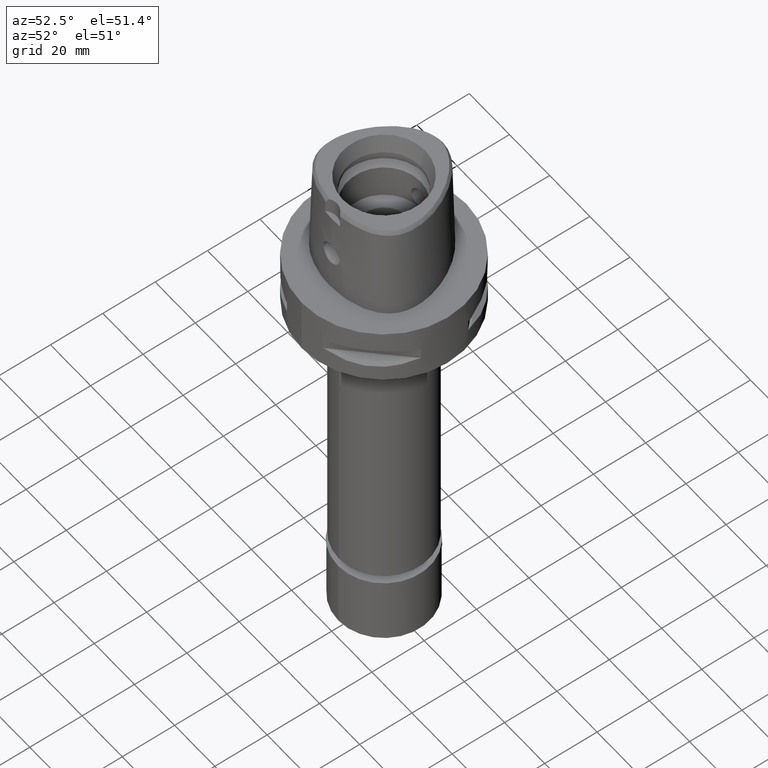
[diagram: clean part render]
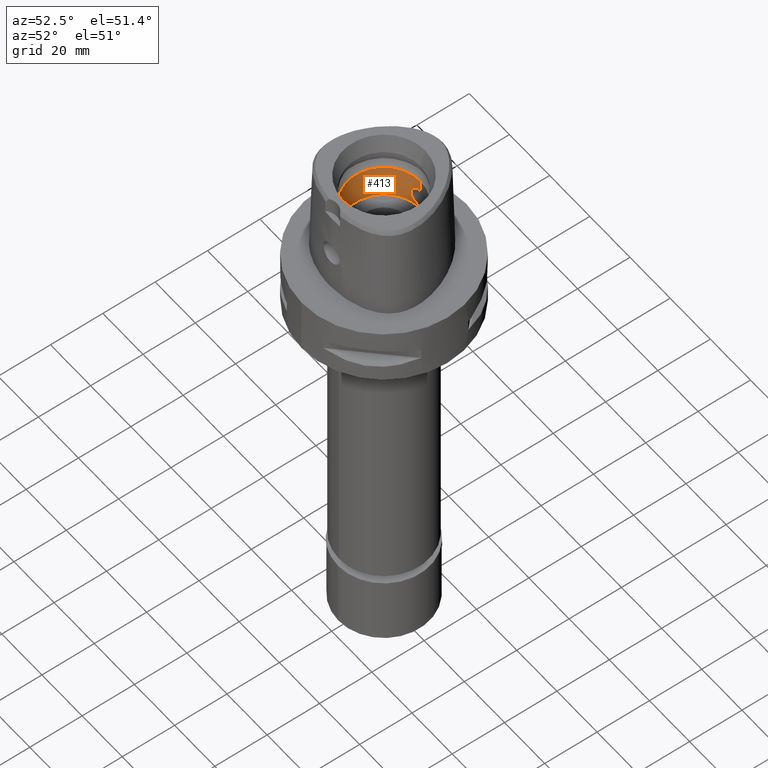
[diagram: same view with one face highlighted and labeled with its STEP entity id]
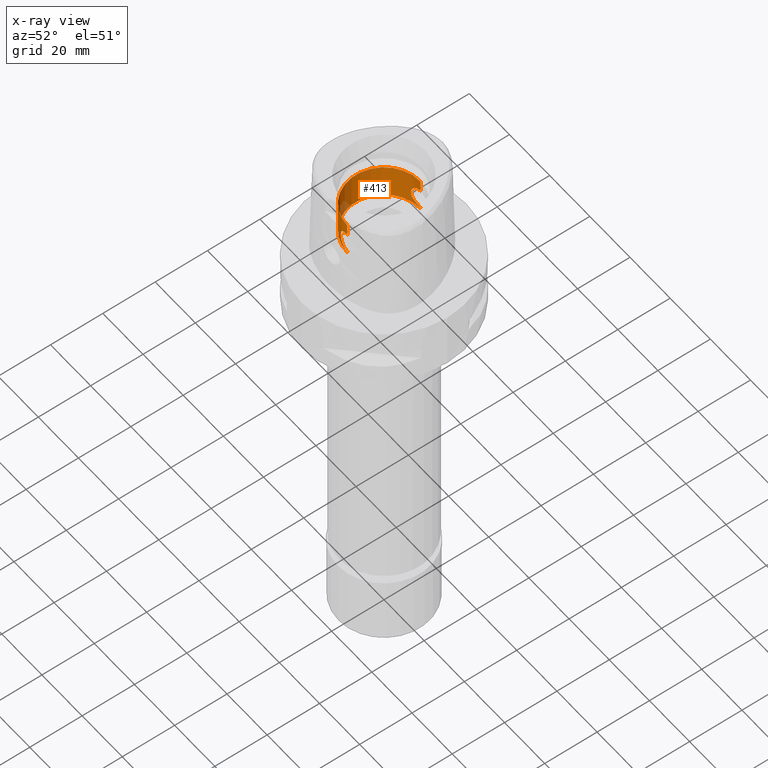
[diagram: x-ray of the same camera — body ghosted, the highlighted face saturated]
A machine part, auxiliary view. The second image highlights one B-rep face of the part: STEP entity #413.
The next image is the same camera in x-ray: the body ghosted, the highlighted face saturated — about 4% of this face is hidden behind the body in this view.
In plain terms, the highlighted cylindrical surface (partial cylindrical patch) has radius 14 mm, axis along (0, 0, -1).
Its self-contained STEP definition (entity closure, byte-faithful):
#26 = CARTESIAN_POINT ( 'NONE',  ( -2.619678395302284635, 13.75271173100907696, 18.58959817601682829 ) ) ;
#52 = CARTESIAN_POINT ( 'NONE',  ( -3.518015050534351484, 13.55099577410093303, 17.51099131720530977 ) ) ;
#72 = CARTESIAN_POINT ( 'NONE',  ( -3.354717022404688720, -13.59210053067289614, 13.23098671883971633 ) ) ;
#75 = EDGE_CURVE ( 'NONE', #4487, #94, #3357, .T. ) ;
#78 = CARTESIAN_POINT ( 'NONE',  ( -3.217024280570685679, 13.62560801646296404, 17.96124663664447851 ) ) ;
#94 = VERTEX_POINT ( 'NONE', #3772 ) ;
#95 = CARTESIAN_POINT ( 'NONE',  ( -3.267849621307421959, -13.61368086708066549, 17.89611250666432696 ) ) ;
#102 = CARTESIAN_POINT ( 'NONE',  ( -3.359018354059780442, 13.59103588697290732, 17.76263171130647933 ) ) ;
#108 = CARTESIAN_POINT ( 'NONE',  ( -0.2481233146395490086, -13.99999999999999645, 11.44999999999999751 ) ) ;
#120 = CARTESIAN_POINT ( 'NONE',  ( -2.903821122526102361, -13.69557803345095870, 18.32351594660953609 ) ) ;
#125 = CARTESIAN_POINT ( 'NONE',  ( -3.792127496899027950, 13.47677589322049840, 14.07720388872361106 ) ) ;
#134 = CARTESIAN_POINT ( 'NONE',  ( -2.206593057644462785, -13.82500440804239084, 12.10388654105299722 ) ) ;
#149 = CARTESIAN_POINT ( 'NONE',  ( -3.864690270392964422, -13.45628098105979120, 16.71293879889267586 ) ) ;
#154 = CARTESIAN_POINT ( 'NONE',  ( -3.020670326908654779, 13.67035789234612864, 12.80192636236084702 ) ) ;
#171 = CARTESIAN_POINT ( 'NONE',  ( -4.027164429084249875, -13.40875122215939896, 16.00316316717791310 ) ) ;
#179 = CARTESIAN_POINT ( 'NONE',  ( -1.643117181819549355, 13.90317184026671704, 11.79805591756453786 ) ) ;
#184 = CARTESIAN_POINT ( 'NONE',  ( -1.935022612052784252, -13.86568942618871247, 11.94154868822637994 ) ) ;
#223 = CARTESIAN_POINT ( 'NONE',  ( -1.571467769242112844, -13.91140618995229516, 19.23272429961840047 ) ) ;
#251 = CARTESIAN_POINT ( 'NONE',  ( -2.255323879987685132, 13.81714880390456202, 12.13606855324395362 ) ) ;
#257 = CARTESIAN_POINT ( 'NONE',  ( 0.0000000000000000000, -14.00000000000000000, 11.00000000000000000 ) ) ;
#277 = CARTESIAN_POINT ( 'NONE',  ( -1.017653704132178927, 13.96322960907036936, 19.42235841239154936 ) ) ;
#288 = CARTESIAN_POINT ( 'NONE',  ( -2.255323160521186754, -13.81714883021829721, 18.86393192913396888 ) ) ;
#294 = VERTEX_POINT ( 'NONE', #558 ) ;
#397 = CARTESIAN_POINT ( 'NONE',  ( -3.702141139944067127, 13.50181959567414935, 13.85346196767712357 ) ) ;
#413 = ADVANCED_FACE ( 'NONE', ( #479 ), #2129, .F. ) ;
#423 = CARTESIAN_POINT ( 'NONE',  ( -2.230276539602563890, 13.82119864383903618, 18.88058804987969452 ) ) ;
#443 = CARTESIAN_POINT ( 'NONE',  ( -3.444120655671330411, -13.56976859149049908, 17.63136982694306454 ) ) ;
#444 = EDGE_CURVE ( 'NONE', #570, #4487, #2775, .T. ) ;
#450 = CARTESIAN_POINT ( 'NONE',  ( -3.750537618543501761, 13.48837475229637661, 13.97159430630645538 ) ) ;
#466 = CARTESIAN_POINT ( 'NONE',  ( -3.750524322622795559, -13.48837880578515502, 17.02843831975151545 ) ) ;
#473 = CARTESIAN_POINT ( 'NONE',  ( -3.864704953908236540, 13.45627652363386595, 14.28710780147966730 ) ) ;
#479 = FACE_OUTER_BOUND ( 'NONE', #2254, .T. ) ;
#491 = CARTESIAN_POINT ( 'NONE',  ( -3.446478130657629091, -13.56938248439971062, 13.36789723771942384 ) ) ;
#500 = CARTESIAN_POINT ( 'NONE',  ( -3.344200888517083303, 13.59470120129321735, 17.78451853046754749 ) ) ;
#505 = CARTESIAN_POINT ( 'NONE',  ( -0.8886493225596974188, -13.97198540294750657, 11.54653074165008775 ) ) ;
#517 = CARTESIAN_POINT ( 'NONE',  ( -3.731977845628441148, -13.49354352116922051, 13.92681855777179756 ) ) ;
#520 = ORIENTED_EDGE ( 'NONE', *, *, #2010, .T. ) ;
#524 = CARTESIAN_POINT ( 'NONE',  ( -1.686547492133162018, 13.89794919732646150, 11.81773303793203844 ) ) ;
#529 = CARTESIAN_POINT ( 'NONE',  ( -2.705648785630775155, -13.73602080770822731, 12.48612827581302120 ) ) ;
#543 = CARTESIAN_POINT ( 'NONE',  ( -3.702127141739468996, -13.50182375070569840, 17.14656944740355726 ) ) ;
#558 = CARTESIAN_POINT ( 'NONE',  ( 0.0000000000000000000, 14.00000000000000000, 11.00000000000000000 ) ) ;
#570 = VERTEX_POINT ( 'NONE', #4051 ) ;
#578 = CARTESIAN_POINT ( 'NONE',  ( -2.261346978744742220, 13.81616282470698032, 12.14011627832047679 ) ) ;
#607 = CARTESIAN_POINT ( 'NONE',  ( -2.474902843185359025, 13.77946291803655221, 12.29346422774143122 ) ) ;
#629 = ORIENTED_EDGE ( 'NONE', *, *, #75, .F. ) ;
#725 = DIRECTION ( 'NONE',  ( 0.0000000000000000000, 0.0000000000000000000, -1.000000000000000000 ) ) ;
#748 = DIRECTION ( 'NONE',  ( 0.0000000000000000000, -1.000000000000000000, 0.0000000000000000000 ) ) ;
#779 = CARTESIAN_POINT ( 'NONE',  ( -1.419282906569975022, 13.92782716423186606, 19.29343954041274500 ) ) ;
#802 = CARTESIAN_POINT ( 'NONE',  ( -3.321818675729910630, 13.60022453487032124, 17.81710118636976148 ) ) ;
#824 = CARTESIAN_POINT ( 'NONE',  ( -3.927456412067801939, 13.43840604247997383, 16.52349544793532843 ) ) ;
#842 = CARTESIAN_POINT ( 'NONE',  ( -3.361917771721290471, -13.59031831955136838, 13.24167861847934269 ) ) ;
#850 = CARTESIAN_POINT ( 'NONE',  ( -3.300113392641764065, 13.60554300990459353, 17.84786463857772176 ) ) ;
#872 = CARTESIAN_POINT ( 'NONE',  ( -3.792113608136728597, -13.47678016659015299, 16.92283307354020394 ) ) ;
#882 = CARTESIAN_POINT ( 'NONE',  ( -3.922086968074596225, 13.43982905497392899, 14.48120596839360275 ) ) ;
#897 = CARTESIAN_POINT ( 'NONE',  ( -3.760687355223339079, -13.48555138752758786, 17.00326497578441121 ) ) ;
#912 = CARTESIAN_POINT ( 'NONE',  ( -2.564506475585013767, -13.76306145072914866, 12.36467152189489305 ) ) ;
#923 = CARTESIAN_POINT ( 'NONE',  ( -3.300146097211795304, -13.60553518918984572, 13.15218130219887804 ) ) ;
#951 = CARTESIAN_POINT ( 'NONE',  ( -3.701480848385385602, -13.50195484765276355, 13.85584820689059526 ) ) ;
#964 = CARTESIAN_POINT ( 'NONE',  ( -2.824270181471372876, -13.71216970554436898, 12.59716805753049940 ) ) ;
#986 = DIRECTION ( 'NONE',  ( 0.0000000000000000000, 0.0000000000000000000, 1.000000000000000000 ) ) ;
#1009 = CARTESIAN_POINT ( 'NONE',  ( -0.4996125170457356157, 14.00000000000000533, 11.45000000000000107 ) ) ;
#1036 = EDGE_CURVE ( 'NONE', #294, #3074, #3376, .T. ) ;
#1049 = CARTESIAN_POINT ( 'NONE',  ( -1.559052860814120756, -13.91280454319135096, 19.23793469162767167 ) ) ;
#1069 = CARTESIAN_POINT ( 'NONE',  ( -1.686550735087898989, -13.89794894225484789, 19.18226547206638699 ) ) ;
#1106 = AXIS2_PLACEMENT_3D ( 'NONE', #1289, #725, #748 ) ;
#1107 = DIRECTION ( 'NONE',  ( 0.0000000000000000000, 0.0000000000000000000, 1.000000000000000000 ) ) ;
#1126 = ORIENTED_EDGE ( 'NONE', *, *, #2999, .F. ) ;
#1141 = ORIENTED_EDGE ( 'NONE', *, *, #444, .F. ) ;
#1163 = DIRECTION ( 'NONE',  ( 0.0000000000000000000, 0.0000000000000000000, 1.000000000000000000 ) ) ;
#1182 = CARTESIAN_POINT ( 'NONE',  ( -1.499110254762268779, 13.91942797523232933, 19.26237458011850023 ) ) ;
#1190 = DIRECTION ( 'NONE',  ( 0.0000000000000000000, 1.000000000000000000, 0.0000000000000000000 ) ) ;
#1208 = CARTESIAN_POINT ( 'NONE',  ( -3.737855532218592458, 13.49191660592741115, 17.05916468326444146 ) ) ;
#1226 = CARTESIAN_POINT ( 'NONE',  ( -3.953308345544217506, -13.43069386238143714, 16.38940134527216586 ) ) ;
#1231 = CARTESIAN_POINT ( 'NONE',  ( -1.935031803101593395, 13.86568816071832977, 19.05844626929745900 ) ) ;
#1249 = CARTESIAN_POINT ( 'NONE',  ( -3.681921415773525386, -13.50729957353742527, 13.81270123671149541 ) ) ;
#1257 = CARTESIAN_POINT ( 'NONE',  ( -2.128124874489936591, 13.83734818431477365, 18.94612210419235865 ) ) ;
#1263 = CARTESIAN_POINT ( 'NONE',  ( -1.499083550138273768, -13.91943067546913504, 11.73761478100302824 ) ) ;
#1279 = CARTESIAN_POINT ( 'NONE',  ( -3.253150361982007688, -13.61695202757328893, 13.08703909582365377 ) ) ;
#1285 = CARTESIAN_POINT ( 'NONE',  ( -3.754238695446730389, 13.48734574627154892, 13.98070187456401037 ) ) ;
#1289 = CARTESIAN_POINT ( 'NONE',  ( 0.0000000000000000000, 0.0000000000000000000, 11.00000000000000000 ) ) ;
#1303 = CARTESIAN_POINT ( 'NONE',  ( -3.612128121266030334, -13.52615160472818090, 13.66709664464266183 ) ) ;
#1312 = CARTESIAN_POINT ( 'NONE',  ( -3.377728049959921819, 13.58640530706137639, 13.26539486208032059 ) ) ;
#1329 = CARTESIAN_POINT ( 'NONE',  ( -2.993286815517739008, -13.67636053672327456, 18.22846751437067070 ) ) ;
#1345 = CARTESIAN_POINT ( 'NONE',  ( -2.128121687467982692, -13.83734872393117499, 12.05387591117801449 ) ) ;
#1366 = CARTESIAN_POINT ( 'NONE',  ( 0.0000000000000000000, -14.00000000000000000, 11.00000000000000000 ) ) ;
#1385 = CARTESIAN_POINT ( 'NONE',  ( -3.386228288498708938, 13.58428977150538230, 13.27829381858934177 ) ) ;
#1410 = CARTESIAN_POINT ( 'NONE',  ( -2.130879132537669474, 13.83743606475561627, 12.05283736817495033 ) ) ;
#1432 = VERTEX_POINT ( 'NONE', #1854 ) ;
#1533 = CARTESIAN_POINT ( 'NONE',  ( -0.8886659555118071596, 13.97198446405361238, 19.45346560059110885 ) ) ;
#1562 = CARTESIAN_POINT ( 'NONE',  ( -2.749410275215096178, 13.72738853749745935, 18.47424654107999231 ) ) ;
#1587 = CARTESIAN_POINT ( 'NONE',  ( -2.824250019478133034, 13.71217387128831966, 18.40285154784292843 ) ) ;
#1603 = CARTESIAN_POINT ( 'NONE',  ( -3.217051431888468649, -13.62560170214188027, 13.03878876121763319 ) ) ;
#1610 = CARTESIAN_POINT ( 'NONE',  ( -3.701442083267798999, 13.50196586781230934, 17.14423904783543051 ) ) ;
#1628 = CARTESIAN_POINT ( 'NONE',  ( -3.098505828303367515, -13.65306849080780971, 18.10920752393312938 ) ) ;
#1634 = CARTESIAN_POINT ( 'NONE',  ( -1.467197647124714344, 13.92282048153832719, 19.27493378767454146 ) ) ;
#1640 = CARTESIAN_POINT ( 'NONE',  ( -1.419257430341616555, -13.92782958298390206, 11.70655093775061317 ) ) ;
#1652 = CIRCLE ( 'NONE', #2299, 14.00000000000000000 ) ;
#1654 = CARTESIAN_POINT ( 'NONE',  ( -2.322873642598336286, -13.80594824667466547, 18.81781813266492520 ) ) ;
#1660 = CARTESIAN_POINT ( 'NONE',  ( -2.837978858513411140, 13.70934507260495572, 18.38945062058951407 ) ) ;
#1665 = CARTESIAN_POINT ( 'NONE',  ( -2.217814638591027343, -13.82320508336331422, 12.11122171766676203 ) ) ;
#1681 = CARTESIAN_POINT ( 'NONE',  ( -3.770294771796357303, -13.48287509938453255, 16.97915535983282354 ) ) ;
#1687 = CARTESIAN_POINT ( 'NONE',  ( -1.559046470345732960, 13.91280509361280338, 11.76206264320087236 ) ) ;
#1703 = CARTESIAN_POINT ( 'NONE',  ( -2.749422472417725860, -13.72794489289616671, 18.47890695832512975 ) ) ;
#1712 = CARTESIAN_POINT ( 'NONE',  ( -1.029187525341942466, 13.97152819383275002, 11.54372763691977077 ) ) ;
#1717 = CARTESIAN_POINT ( 'NONE',  ( -2.312898137742818605, -13.80784210691405001, 12.17400781860961168 ) ) ;
#1745 = CARTESIAN_POINT ( 'NONE',  ( -2.225296564809450039, -13.82200211919814414, 12.11613014189237170 ) ) ;
#1786 = CARTESIAN_POINT ( 'NONE',  ( -1.773865141790037736, 13.88717244331922629, 11.85856729413082000 ) ) ;
#1797 = DIRECTION ( 'NONE',  ( 0.0000000000000000000, 0.0000000000000000000, 1.000000000000000000 ) ) ;
#1854 = CARTESIAN_POINT ( 'NONE',  ( 0.0000000000000000000, 14.00000000000000000, 24.19999999999999929 ) ) ;
#1870 = ORIENTED_EDGE ( 'NONE', *, *, #3752, .T. ) ;
#1937 = CARTESIAN_POINT ( 'NONE',  ( -4.027177030537256286, 13.40874799796435646, 14.99692865872695968 ) ) ;
#1962 = CARTESIAN_POINT ( 'NONE',  ( -2.225297292170715924, 13.82200194383691638, 18.88386937964046197 ) ) ;
#1979 = CARTESIAN_POINT ( 'NONE',  ( -3.329843408987857245, -13.59830493607936397, 17.80688310673146901 ) ) ;
#1988 = CARTESIAN_POINT ( 'NONE',  ( -2.564501434791734535, 13.76306241860086566, 18.63533254429021824 ) ) ;
#2006 = CARTESIAN_POINT ( 'NONE',  ( -3.381261640111944189, -13.58552648434257470, 17.72925774581965541 ) ) ;
#2010 = EDGE_CURVE ( 'NONE', #4321, #294, #4935, .T. ) ;
#2013 = CARTESIAN_POINT ( 'NONE',  ( -1.643415310717222466, 13.90358979475627699, 19.20357080161153718 ) ) ;
#2034 = CARTESIAN_POINT ( 'NONE',  ( -3.524202820988151963, -13.54926790385313495, 17.49682281037770082 ) ) ;
#2043 = CARTESIAN_POINT ( 'NONE',  ( -3.731940390352617154, 13.49355430793171351, 17.07327029214023284 ) ) ;
#2049 = CARTESIAN_POINT ( 'NONE',  ( 0.0000000000000000000, -14.00000000000000000, 11.44999999999999929 ) ) ;
#2061 = CARTESIAN_POINT ( 'NONE',  ( -2.632430901681130031, -13.75053431938959925, 18.58072566512826285 ) ) ;
#2070 = CARTESIAN_POINT ( 'NONE',  ( -3.144638533071360875, 13.64250208599043468, 12.94692877271025644 ) ) ;
#2076 = CARTESIAN_POINT ( 'NONE',  ( -0.5031310581227359524, -13.99299635073687931, 11.47286375706424622 ) ) ;
#2091 = CARTESIAN_POINT ( 'NONE',  ( -2.935456010393902027, -13.68884614762644425, 18.29059114668750041 ) ) ;
#2124 = CARTESIAN_POINT ( 'NONE',  ( -2.935454736739566250, 13.68884642358831449, 12.70940751406801539 ) ) ;
#2129 = CYLINDRICAL_SURFACE ( 'NONE', #3948, 14.00000000000000000 ) ;
#2141 = CARTESIAN_POINT ( 'NONE',  ( -1.600075446877084140, -13.90814546667612994, 19.22055106281711190 ) ) ;
#2148 = CARTESIAN_POINT ( 'NONE',  ( -2.010507492188096990, 13.85534073011708500, 11.98171406931971106 ) ) ;
#2212 = CARTESIAN_POINT ( 'NONE',  ( -1.643121245995294410, -13.90317151084333425, 19.20194226891573663 ) ) ;
#2223 = CARTESIAN_POINT ( 'NONE',  ( -1.210747584920323305, 13.94747087010052411, 19.36537112445981990 ) ) ;
#2254 = EDGE_LOOP ( 'NONE', ( #3057, #520, #2472, #1126, #1870, #2368, #629, #1141 ) ) ;
#2299 = AXIS2_PLACEMENT_3D ( 'NONE', #3094, #1163, #1190 ) ;
#2323 = CARTESIAN_POINT ( 'NONE',  ( -3.760700854267346127, 13.48554726028667794, 13.99676879321385314 ) ) ;
#2345 = CARTESIAN_POINT ( 'NONE',  ( -3.446436350315618125, 13.56939302549948678, 17.63216979001798634 ) ) ;
#2367 = CARTESIAN_POINT ( 'NONE',  ( -1.516920385667555715, 13.91749884183641761, 19.25522076862875309 ) ) ;
#2368 = ORIENTED_EDGE ( 'NONE', *, *, #3836, .T. ) ;
#2387 = CARTESIAN_POINT ( 'NONE',  ( -3.927481156265820506, -13.43839870144734761, 14.47659767327388458 ) ) ;
#2393 = CARTESIAN_POINT ( 'NONE',  ( -3.362133966299218901, 13.59026471238487055, 17.75800271448122913 ) ) ;
#2414 = CARTESIAN_POINT ( 'NONE',  ( -3.754225276817499068, -13.48734984053147024, 17.01933128120939998 ) ) ;
#2423 = CARTESIAN_POINT ( 'NONE',  ( -3.833383690839124558, 13.46518483971830449, 14.19008306888455806 ) ) ;
#2427 = CARTESIAN_POINT ( 'NONE',  ( -2.180419572365643877, -13.82916698131289124, 12.08696268834576593 ) ) ;
#2440 = CARTESIAN_POINT ( 'NONE',  ( -3.410729761826063466, -13.57816908607315298, 17.68402948338382075 ) ) ;
#2447 = CARTESIAN_POINT ( 'NONE',  ( -3.267850773811167731, 13.61368064682746137, 13.10388896307586926 ) ) ;
#2454 = CARTESIAN_POINT ( 'NONE',  ( -2.619686157460625164, -13.75271022501362772, 12.41040829225517683 ) ) ;
#2466 = VECTOR ( 'NONE', #4562, 1000.000000000000000 ) ;
#2468 = CARTESIAN_POINT ( 'NONE',  ( -3.092413353121898023, -13.65466607278654720, 12.88133576747026865 ) ) ;
#2472 = ORIENTED_EDGE ( 'NONE', *, *, #1036, .T. ) ;
#2485 = CARTESIAN_POINT ( 'NONE',  ( -1.210725458446234581, -13.94747263052656372, 11.63462196634629997 ) ) ;
#2499 = CARTESIAN_POINT ( 'NONE',  ( -3.850581325936987653, -13.46063411093304474, 14.21392402464395488 ) ) ;
#2505 = CARTESIAN_POINT ( 'NONE',  ( 0.0000000000000000000, 14.00000000000000000, 11.44999999999999929 ) ) ;
#2523 = CARTESIAN_POINT ( 'NONE',  ( -2.010506749441190788, -13.85534081817406005, 19.01828630586123481 ) ) ;
#2737 = CARTESIAN_POINT ( 'NONE',  ( -3.092390845250120535, 13.65467110474720513, 18.11869046909205139 ) ) ;
#2758 = CARTESIAN_POINT ( 'NONE',  ( -2.987552952231450121, 13.67820073061518826, 18.24083132097567272 ) ) ;
#2775 = B_SPLINE_CURVE_WITH_KNOTS ( 'NONE', 3,
 ( #2049, #108, #2076, #505, #3196, #2485, #4035, #1640, #4751, #1263, #2819, #3595, #4458, #184, #4371, #4428, #1345, #2427, #134, #1665, #1745, #4008, #1717, #3275, #912, #2454, #529, #4835, #2899, #964, #2883, #3969, #2468, #1603, #1279, #923, #3183, #4384, #72, #4739, #842, #4444, #491, #4792, #1303, #2832, #1249, #951, #4715, #517, #3995, #4021, #2499, #2387, #4329, #3536, #3158, #171, #1226, #2806, #149, #4357, #872, #1681, #897, #2414, #466, #543, #3940, #2778, #2034, #3637, #443, #2440, #3583, #2855, #2006, #3556, #1979, #95, #3239, #1628, #4412, #1329, #2091, #120, #1703, #2061, #3609, #3262, #4821, #1654, #3211, #4767, #4078, #4148, #288, #4518, #2523, #3318, #4472, #1069, #2212, #2141, #223, #1049, #3686, #3759, #4878 ),
 .UNSPECIFIED., .F., .F.,
 ( 4, 2, 2, 1, 1, 2, 2, 2, 2, 1, 1, 1, 2, 2, 2, 2, 1, 2, 2, 2, 2, 1, 1, 1, 2, 2, 2, 2, 1, 1, 2, 2, 2, 2, 2, 2, 1, 1, 1, 2, 2, 2, 2, 1, 1, 1, 2, 2, 2, 2, 2, 2, 2, 2, 1, 1, 1, 2, 2, 2, 2, 1, 2, 2, 4 ),
 ( 0.0000000000000000000, 0.06249999999997976619, 0.09374999999996962152, 0.1093749999999646394, 0.1171874999999621553, 0.1210937499999608646, 0.1249999999999595879, 0.1562499999999499845, 0.1718749999999451827, 0.1796874999999427958, 0.1835937499999415190, 0.1855468749999408251, 0.1865234374999404365, 0.1874999999999400757, 0.2187499999999330813, 0.2343749999999295008, 0.2421874999999277522, 0.2460937499999270306, 0.2499999999999262812, 0.2812499999999212852, 0.2968749999999187317, 0.3046874999999172329, 0.3085937499999167888, 0.3105468749999167888, 0.3115234374999169553, 0.3124999999999171219, 0.3437499999999213962, 0.3593749999999235611, 0.3671874999999246714, 0.3710937499999253930, 0.3730468749999257261, 0.3749999999999261147, 0.4374999999999321099, 0.4999999999999381606, 0.5624999999999442668, 0.5937499999999472644, 0.6093749999999491518, 0.6171874999999497069, 0.6210937499999500400, 0.6230468749999501510, 0.6249999999999502620, 0.6562499999999502620, 0.6718749999999502620, 0.6796874999999502620, 0.6835937499999500400, 0.6855468749999501510, 0.6865234374999504841, 0.6874999999999508171, 0.7187499999999498179, 0.7343749999999492628, 0.7421874999999492628, 0.7499999999999492628, 0.7812499999999477085, 0.7968749999999465983, 0.8046874999999464873, 0.8085937499999462652, 0.8105468749999461542, 0.8115234374999464873, 0.8124999999999467093, 0.8437499999999538147, 0.8593749999999574785, 0.8671874999999594769, 0.8710937499999606981, 0.8749999999999618083, 1.000000000000000000 ),
 .UNSPECIFIED. ) ;
#2778 = CARTESIAN_POINT ( 'NONE',  ( -3.557091126917224955, -13.54068326244346032, 17.43752194212314066 ) ) ;
#2785 = CARTESIAN_POINT ( 'NONE',  ( -3.557103315884909023, 13.54067999979316994, 13.56250036255728908 ) ) ;
#2806 = CARTESIAN_POINT ( 'NONE',  ( -3.922071948616295600, -13.43983347207877799, 16.51885096731274771 ) ) ;
#2814 = CARTESIAN_POINT ( 'NONE',  ( -3.361878329228717543, 13.59032797669557091, 17.75838009718968991 ) ) ;
#2819 = CARTESIAN_POINT ( 'NONE',  ( -1.516892438206209670, -13.91750171363648469, 11.74476793898432980 ) ) ;
#2832 = CARTESIAN_POINT ( 'NONE',  ( -3.641270897325158629, -13.51833445138737666, 13.72581399892813359 ) ) ;
#2839 = CARTESIAN_POINT ( 'NONE',  ( -2.180421397693586005, 13.82916663774151189, 18.91303614152678492 ) ) ;
#2855 = CARTESIAN_POINT ( 'NONE',  ( -3.386222550582923319, -13.58429113855500425, 17.72171492638302936 ) ) ;
#2864 = CARTESIAN_POINT ( 'NONE',  ( 0.0000000000000000000, 14.00000000000000000, 11.44999999999999929 ) ) ;
#2883 = CARTESIAN_POINT ( 'NONE',  ( -2.838001206520698982, -13.70934043460168184, 12.61057132957330573 ) ) ;
#2893 = CARTESIAN_POINT ( 'NONE',  ( -2.268770039420635598, 13.81494532562953736, 12.14511618721723529 ) ) ;
#2899 = CARTESIAN_POINT ( 'NONE',  ( -2.794211278573204282, -13.71831413401223188, 12.56822260823508230 ) ) ;
#2921 = CARTESIAN_POINT ( 'NONE',  ( -3.393641165308228569, 13.58244194947951655, 13.28960599956106137 ) ) ;
#2948 = CARTESIAN_POINT ( 'NONE',  ( -2.903820362932443722, 13.69557819983568159, 12.67648326540787096 ) ) ;
#2993 = VERTEX_POINT ( 'NONE', #3468 ) ;
#2999 = EDGE_CURVE ( 'NONE', #2993, #3074, #4122, .T. ) ;
#3057 = ORIENTED_EDGE ( 'NONE', *, *, #4610, .F. ) ;
#3074 = VERTEX_POINT ( 'NONE', #2505 ) ;
#3088 = CARTESIAN_POINT ( 'NONE',  ( -1.307195624695439484, 13.93893488649187340, 19.33429749464460201 ) ) ;
#3094 = CARTESIAN_POINT ( 'NONE',  ( 0.0000000000000000000, 0.0000000000000000000, 24.19999999999999929 ) ) ;
#3114 = CARTESIAN_POINT ( 'NONE',  ( -2.794193095644436742, 13.71831785624141098, 18.43179471068308928 ) ) ;
#3142 = CARTESIAN_POINT ( 'NONE',  ( -3.641230269709331502, 13.51834568158881034, 17.27426933434576739 ) ) ;
#3158 = CARTESIAN_POINT ( 'NONE',  ( -4.049888364928027507, -13.40142438050470020, 15.74858425819249774 ) ) ;
#3165 = CARTESIAN_POINT ( 'NONE',  ( -3.953323231412175787, 13.43068962721257975, 14.61066354488243491 ) ) ;
#3183 = CARTESIAN_POINT ( 'NONE',  ( -3.321853313818425413, -13.60021618836548463, 13.18294841949694174 ) ) ;
#3190 = CARTESIAN_POINT ( 'NONE',  ( -1.758921025118927783, 13.88947803722007812, 19.15051346379670960 ) ) ;
#3196 = CARTESIAN_POINT ( 'NONE',  ( -1.017634815018393812, -13.96323084136860082, 11.57763677123190860 ) ) ;
#3211 = CARTESIAN_POINT ( 'NONE',  ( -2.286398534805657690, -13.81203661313881170, 18.84292473767170151 ) ) ;
#3220 = CARTESIAN_POINT ( 'NONE',  ( -3.612086905712767138, 13.52616283719309109, 17.33298450047830386 ) ) ;
#3239 = CARTESIAN_POINT ( 'NONE',  ( -3.144639082081559067, -13.64250193806564759, 18.05307052712284133 ) ) ;
#3245 = CARTESIAN_POINT ( 'NONE',  ( -3.329846348083611129, 13.59830429443868027, 13.19312097262903194 ) ) ;
#3262 = CARTESIAN_POINT ( 'NONE',  ( -2.425352929846759320, -13.78827903498532237, 18.74398070434844854 ) ) ;
#3275 = CARTESIAN_POINT ( 'NONE',  ( -2.407032360554032024, -13.79178997041146992, 12.24015219205203486 ) ) ;
#3306 = DIRECTION ( 'NONE',  ( 0.0000000000000000000, 0.0000000000000000000, -1.000000000000000000 ) ) ;
#3318 = CARTESIAN_POINT ( 'NONE',  ( -1.832688504019662101, -13.87954592927048481, 19.11223571034948066 ) ) ;
#3323 = CARTESIAN_POINT ( 'NONE',  ( -2.256427752577829793, 13.81696803720851108, 12.13681065372739099 ) ) ;
#3347 = CARTESIAN_POINT ( 'NONE',  ( -3.471403466906007207, 13.56281975629926784, 13.41360123917986691 ) ) ;
#3357 = LINE ( 'NONE', #4915, #4275 ) ;
#3376 = LINE ( 'NONE', #4182, #4460 ) ;
#3383 = CARTESIAN_POINT ( 'NONE',  ( 0.0000000000000000000, 14.00000000000000000, 19.55000000000000071 ) ) ;
#3423 = CARTESIAN_POINT ( 'NONE',  ( 0.0000000000000000000, 14.00000000000000000, 19.55000000000000071 ) ) ;
#3468 = CARTESIAN_POINT ( 'NONE',  ( 0.0000000000000000000, 14.00000000000000000, 19.55000000000000071 ) ) ;
#3493 = CARTESIAN_POINT ( 'NONE',  ( -2.407033472650903061, 13.79178974259890822, 18.75984676800537088 ) ) ;
#3518 = CARTESIAN_POINT ( 'NONE',  ( -2.705636138615230113, 13.73602333023276856, 18.51388304873203339 ) ) ;
#3536 = CARTESIAN_POINT ( 'NONE',  ( -4.050110812253268300, -13.40137386751527870, 15.25506672282089760 ) ) ;
#3544 = CARTESIAN_POINT ( 'NONE',  ( -3.354678549959474676, 13.59210992299538034, 17.76907015801137035 ) ) ;
#3556 = CARTESIAN_POINT ( 'NONE',  ( -3.377722732033150876, -13.58640656469135521, 17.73461317607208443 ) ) ;
#3562 = CARTESIAN_POINT ( 'NONE',  ( -3.253121226364684038, 13.61695887878784639, 17.91300007212690204 ) ) ;
#3570 = CARTESIAN_POINT ( 'NONE',  ( 0.0000000000000000000, 0.0000000000000000000, 39.89999999999999858 ) ) ;
#3583 = CARTESIAN_POINT ( 'NONE',  ( -3.393635066738103667, -13.58244341114359166, 17.71040336024226391 ) ) ;
#3589 = CARTESIAN_POINT ( 'NONE',  ( -2.312900638625890348, 13.80784164022789895, 18.82599051006205571 ) ) ;
#3595 = CARTESIAN_POINT ( 'NONE',  ( -1.643394206411018743, -13.90359217049068974, 11.79641963000179494 ) ) ;
#3609 = CARTESIAN_POINT ( 'NONE',  ( -2.474905499078611015, -13.77946236753565756, 18.70653372656625635 ) ) ;
#3617 = CARTESIAN_POINT ( 'NONE',  ( -3.444129048564986917, 13.56976650812635476, 13.36864368473668918 ) ) ;
#3637 = CARTESIAN_POINT ( 'NONE',  ( -3.471394015380948161, -13.56282214851942136, 17.58641446142748066 ) ) ;
#3643 = CARTESIAN_POINT ( 'NONE',  ( -2.632427885299229331, 13.75053493546242223, 12.41927177494957846 ) ) ;
#3673 = DIRECTION ( 'NONE',  ( 0.0000000000000000000, -1.000000000000000000, 0.0000000000000000000 ) ) ;
#3686 = CARTESIAN_POINT ( 'NONE',  ( -1.029192850802402859, -13.97152801410329737, 19.45627118921805021 ) ) ;
#3748 = CARTESIAN_POINT ( 'NONE',  ( -0.5031407451709756229, 13.99299611601340310, 19.52713535068301098 ) ) ;
#3752 = EDGE_CURVE ( 'NONE', #2993, #1432, #4630, .T. ) ;
#3759 = CARTESIAN_POINT ( 'NONE',  ( -0.4996155958088902005, -14.00000000000000711, 19.55000000000000426 ) ) ;
#3772 = CARTESIAN_POINT ( 'NONE',  ( 0.0000000000000000000, -14.00000000000000000, 24.19999999999999929 ) ) ;
#3836 = EDGE_CURVE ( 'NONE', #1432, #94, #1652, .T. ) ;
#3869 = CARTESIAN_POINT ( 'NONE',  ( -1.994206117373931386, 13.85732116185150176, 19.02567764436565056 ) ) ;
#3896 = CARTESIAN_POINT ( 'NONE',  ( -2.217815544944976569, 13.82320487995709968, 18.88877768902166920 ) ) ;
#3922 = CARTESIAN_POINT ( 'NONE',  ( -4.050102396491997325, 13.40137576637340544, 15.74509794230522708 ) ) ;
#3924 = CARTESIAN_POINT ( 'NONE',  ( 0.0000000000000000000, -14.00000000000000000, 19.55000000000000071 ) ) ;
#3940 = CARTESIAN_POINT ( 'NONE',  ( -3.649287980267357678, -13.51628390331797291, 17.26146288143796781 ) ) ;
#3948 = AXIS2_PLACEMENT_3D ( 'NONE', #3570, #3306, #3673 ) ;
#3950 = CARTESIAN_POINT ( 'NONE',  ( -3.850551668399759819, 13.46064315705943670, 16.78616536902733003 ) ) ;
#3969 = CARTESIAN_POINT ( 'NONE',  ( -2.987574083363175870, -13.67819611580151573, 12.75919171830528853 ) ) ;
#3975 = CARTESIAN_POINT ( 'NONE',  ( -2.206594234807744748, 13.82500416257448883, 18.89611269310628927 ) ) ;
#3995 = CARTESIAN_POINT ( 'NONE',  ( -3.737892709877926656, -13.49190587340792646, 13.94092444702825340 ) ) ;
#4003 = CARTESIAN_POINT ( 'NONE',  ( -3.098504879000250956, 13.65306871747472961, 12.89079134089070244 ) ) ;
#4008 = CARTESIAN_POINT ( 'NONE',  ( -2.230276049858933352, -13.82119878116900047, 12.11941162708674646 ) ) ;
#4021 = CARTESIAN_POINT ( 'NONE',  ( -3.740379875244510988, -13.49121655552178467, 13.94689503969144262 ) ) ;
#4028 = CARTESIAN_POINT ( 'NONE',  ( -2.356175113555858402, 13.80026535253437459, 12.20580044254442598 ) ) ;
#4035 = CARTESIAN_POINT ( 'NONE',  ( -1.307171916325396088, -13.93893693298713465, 11.66569446116271003 ) ) ;
#4051 = CARTESIAN_POINT ( 'NONE',  ( 0.0000000000000000000, -14.00000000000000000, 11.44999999999999929 ) ) ;
#4078 = CARTESIAN_POINT ( 'NONE',  ( -2.261346510151319933, -13.81616280940040120, 18.85988403713160011 ) ) ;
#4086 = CARTESIAN_POINT ( 'NONE',  ( -1.600070440272940431, 13.90814588211191705, 11.77944678257771471 ) ) ;
#4108 = CARTESIAN_POINT ( 'NONE',  ( -2.425350615172737978, 13.78827952448277649, 12.25601757806811598 ) ) ;
#4122 = B_SPLINE_CURVE_WITH_KNOTS ( 'NONE', 3,
 ( #3423, #4985, #3748, #1533, #277, #2223, #3088, #779, #1634, #1182, #2367, #2013, #3190, #1231, #3869, #4671, #1257, #2839, #3975, #3896, #1962, #423, #3589, #3493, #1988, #26, #3518, #1562, #3114, #1587, #1660, #2758, #2737, #78, #3562, #850, #802, #500, #3544, #102, #2814, #2393, #2345, #52, #3220, #3142, #4697, #1610, #4284, #2043, #1208, #4308, #3950, #824, #4775, #3922, #4366, #1937, #3165, #882, #473, #2423, #125, #4746, #2323, #1285, #450, #397, #4721, #2785, #4335, #3347, #3617, #4478, #2921, #1385, #4906, #1312, #3245, #2447, #2070, #4003, #154, #4423, #2124, #2948, #4883, #3643, #607, #4108, #4028, #4860, #4502, #2893, #578, #3323, #251, #1410, #2148, #4452, #1786, #524, #179, #4086, #4801, #1687, #1712, #1009, #2864 ),
 .UNSPECIFIED., .F., .F.,
 ( 4, 2, 2, 1, 1, 2, 2, 2, 2, 1, 1, 1, 2, 2, 2, 2, 1, 2, 2, 2, 2, 1, 1, 1, 2, 2, 2, 2, 1, 1, 2, 2, 2, 2, 2, 2, 1, 1, 1, 2, 2, 2, 2, 1, 1, 1, 2, 2, 2, 2, 2, 2, 2, 2, 1, 1, 1, 2, 2, 2, 2, 1, 2, 2, 4 ),
 ( 0.0000000000000000000, 0.06249999999998796796, 0.09374999999998200051, 0.1093749999999790445, 0.1171874999999775596, 0.1210937499999766714, 0.1249999999999757833, 0.1562499999999711620, 0.1718749999999688027, 0.1796874999999678035, 0.1835937499999671374, 0.1855468749999670541, 0.1865234374999671374, 0.1874999999999672207, 0.2187499999999833744, 0.2343749999999916178, 0.2421874999999957534, 0.2460937499999980294, 0.2500000000000003331, 0.2812500000000160427, 0.2968750000000235367, 0.3046875000000269229, 0.3085937500000286993, 0.3105468750000295319, 0.3115234375000293654, 0.3125000000000291434, 0.3437500000000342504, 0.3593750000000367484, 0.3671875000000380251, 0.3710937500000390243, 0.3730468750000395239, 0.3750000000000400235, 0.4375000000000567879, 0.5000000000000734968, 0.5625000000000902611, 0.5937500000000986988, 0.6093750000001029177, 0.6171875000001051381, 0.6210937500001062483, 0.6230468750001068035, 0.6250000000001072475, 0.6562500000001155742, 0.6718750000001195710, 0.6796875000001216804, 0.6835937500001229017, 0.6855468750001233458, 0.6865234375001235678, 0.6875000000001236788, 0.7187500000001103562, 0.7343750000001036948, 0.7421875000001002531, 0.7500000000000968114, 0.7812500000000830447, 0.7968750000000760503, 0.8046875000000724976, 0.8085937500000706102, 0.8105468750000698330, 0.8115234375000695000, 0.8125000000000691669, 0.8437500000000581757, 0.8593750000000527356, 0.8671875000000498490, 0.8710937500000484057, 0.8750000000000468514, 1.000000000000000000 ),
 .UNSPECIFIED. ) ;
#4148 = CARTESIAN_POINT ( 'NONE',  ( -2.256427154530367130, -13.81696804359551223, 18.86318974758239264 ) ) ;
#4182 = CARTESIAN_POINT ( 'NONE',  ( 0.0000000000000000000, 14.00000000000000000, 11.00000000000000000 ) ) ;
#4275 = VECTOR ( 'NONE', #1797, 1000.000000000000000 ) ;
#4284 = CARTESIAN_POINT ( 'NONE',  ( -3.722979084155008778, 13.49603244640840494, 17.09447192020939355 ) ) ;
#4308 = CARTESIAN_POINT ( 'NONE',  ( -3.740342756348632669, 13.49122728102877922, 17.05319435210431678 ) ) ;
#4321 = VERTEX_POINT ( 'NONE', #257 ) ;
#4329 = CARTESIAN_POINT ( 'NONE',  ( -4.027226763017294431, -13.40876847119178628, 14.99610997786343880 ) ) ;
#4335 = CARTESIAN_POINT ( 'NONE',  ( -3.524214125981482315, 13.54926494695094519, 13.50319703750522038 ) ) ;
#4357 = CARTESIAN_POINT ( 'NONE',  ( -3.833369308916736884, -13.46518925915903786, 16.80995876173737713 ) ) ;
#4366 = CARTESIAN_POINT ( 'NONE',  ( -4.049896901465985799, 13.40142245051330150, 15.25152965792942439 ) ) ;
#4371 = CARTESIAN_POINT ( 'NONE',  ( -1.994198937847071695, -13.85732220438079487, 11.97431825489730883 ) ) ;
#4384 = CARTESIAN_POINT ( 'NONE',  ( -3.344238039717450928, -13.59469216954661164, 13.21553584121986269 ) ) ;
#4412 = CARTESIAN_POINT ( 'NONE',  ( -3.020671571517385079, -13.67035761354181567, 18.19807224231886167 ) ) ;
#4423 = CARTESIAN_POINT ( 'NONE',  ( -2.993285523514248148, 13.67636082191074465, 12.77153106876643029 ) ) ;
#4428 = CARTESIAN_POINT ( 'NONE',  ( -2.083407133974967351, -13.84411581087931609, 12.02680190502075952 ) ) ;
#4444 = CARTESIAN_POINT ( 'NONE',  ( -3.362173742600623960, -13.59025497177372444, 13.24205651252572657 ) ) ;
#4452 = CARTESIAN_POINT ( 'NONE',  ( -1.832687521762462746, 13.87954598314542487, 11.88776377930263628 ) ) ;
#4458 = CARTESIAN_POINT ( 'NONE',  ( -1.758905181544877738, -13.88947997003326407, 11.84947872872784380 ) ) ;
#4460 = VECTOR ( 'NONE', #1107, 1000.000000000000000 ) ;
#4472 = CARTESIAN_POINT ( 'NONE',  ( -1.773866901131316398, -13.88717232140362512, 19.14143182996220460 ) ) ;
#4478 = CARTESIAN_POINT ( 'NONE',  ( -3.410736668672166960, 13.57816740944220335, 13.31598128965564776 ) ) ;
#4487 = VERTEX_POINT ( 'NONE', #3924 ) ;
#4502 = CARTESIAN_POINT ( 'NONE',  ( -2.286398385998498206, 13.81203673217290984, 12.15707516240506081 ) ) ;
#4518 = CARTESIAN_POINT ( 'NONE',  ( -2.130878052373287090, -13.83743616451380376, 18.94716331636739781 ) ) ;
#4562 = DIRECTION ( 'NONE',  ( 0.0000000000000000000, 0.0000000000000000000, 1.000000000000000000 ) ) ;
#4610 = EDGE_CURVE ( 'NONE', #4321, #570, #4803, .T. ) ;
#4630 = LINE ( 'NONE', #3383, #2466 ) ;
#4671 = CARTESIAN_POINT ( 'NONE',  ( -2.083411601062610696, 13.84411510350190433, 18.97319540527099591 ) ) ;
#4697 = CARTESIAN_POINT ( 'NONE',  ( -3.681881978401405409, 13.50731068322988904, 17.18738480616744724 ) ) ;
#4715 = CARTESIAN_POINT ( 'NONE',  ( -3.723016948500601941, -13.49602158194119816, 13.90561649034854774 ) ) ;
#4721 = CARTESIAN_POINT ( 'NONE',  ( -3.649301949993455807, 13.51627993554311757, 13.73856573848065921 ) ) ;
#4739 = CARTESIAN_POINT ( 'NONE',  ( -3.359057406672331325, -13.59102633627038692, 13.23742626534988531 ) ) ;
#4746 = CARTESIAN_POINT ( 'NONE',  ( -3.770308390409403909, 13.48287092448919111, 14.02087934128790181 ) ) ;
#4751 = CARTESIAN_POINT ( 'NONE',  ( -1.467171431347530586, -13.92282306808096770, 11.72505602459325402 ) ) ;
#4767 = CARTESIAN_POINT ( 'NONE',  ( -2.268769762114531741, -13.81494527824135865, 18.85488400078810400 ) ) ;
#4775 = CARTESIAN_POINT ( 'NONE',  ( -4.027212581649140866, 13.40877224882997076, 16.00399962583684399 ) ) ;
#4792 = CARTESIAN_POINT ( 'NONE',  ( -3.518057238276676824, -13.55098476907309113, 13.48908220797236979 ) ) ;
#4801 = CARTESIAN_POINT ( 'NONE',  ( -1.571462107230370497, 13.91140666532092318, 11.76727331524987719 ) ) ;
#4803 = LINE ( 'NONE', #1366, #4997 ) ;
#4821 = CARTESIAN_POINT ( 'NONE',  ( -2.356176558271943833, -13.80026501326130628, 18.79419852731664875 ) ) ;
#4835 = CARTESIAN_POINT ( 'NONE',  ( -2.749425564352095286, -13.72738545437250579, 12.52576752524904258 ) ) ;
#4860 = CARTESIAN_POINT ( 'NONE',  ( -2.322872722170419735, 13.80594849615573594, 12.18218122993247476 ) ) ;
#4878 = CARTESIAN_POINT ( 'NONE',  ( 0.0000000000000000000, -14.00000000000000000, 19.55000000000000071 ) ) ;
#4883 = CARTESIAN_POINT ( 'NONE',  ( -2.749420112991600273, 13.72794539609903808, 12.52109076111343100 ) ) ;
#4906 = CARTESIAN_POINT ( 'NONE',  ( -3.381267134395070872, 13.58552518092164973, 13.27075058725879941 ) ) ;
#4915 = CARTESIAN_POINT ( 'NONE',  ( 0.0000000000000000000, -14.00000000000000000, 19.55000000000000071 ) ) ;
#4935 = CIRCLE ( 'NONE', #1106, 14.00000000000000000 ) ;
#4985 = CARTESIAN_POINT ( 'NONE',  ( -0.2481281380956379679, 13.99999999999999645, 19.54999999999999716 ) ) ;
#4997 = VECTOR ( 'NONE', #986, 1000.000000000000000 ) ;